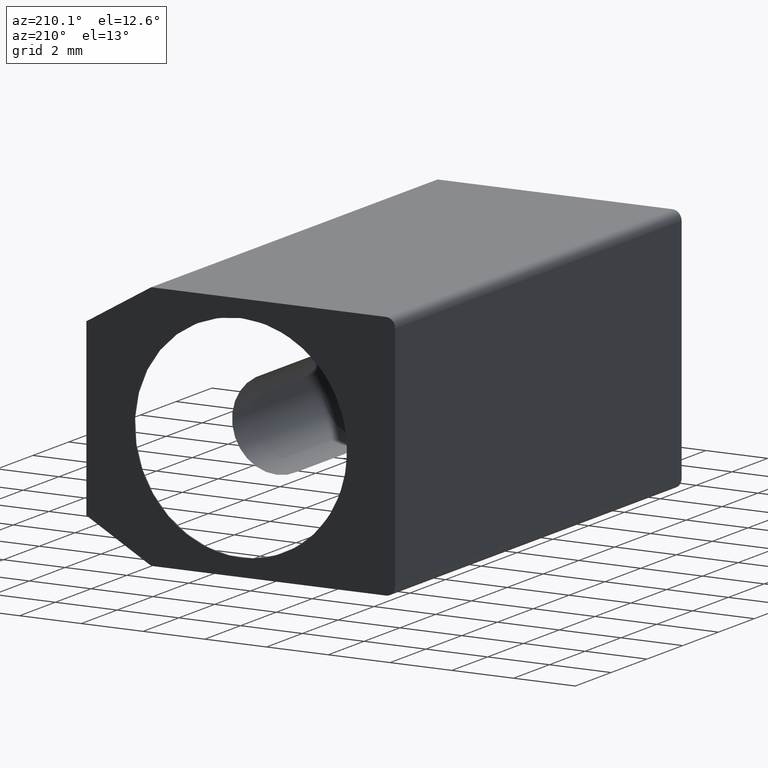
[diagram: clean part render]
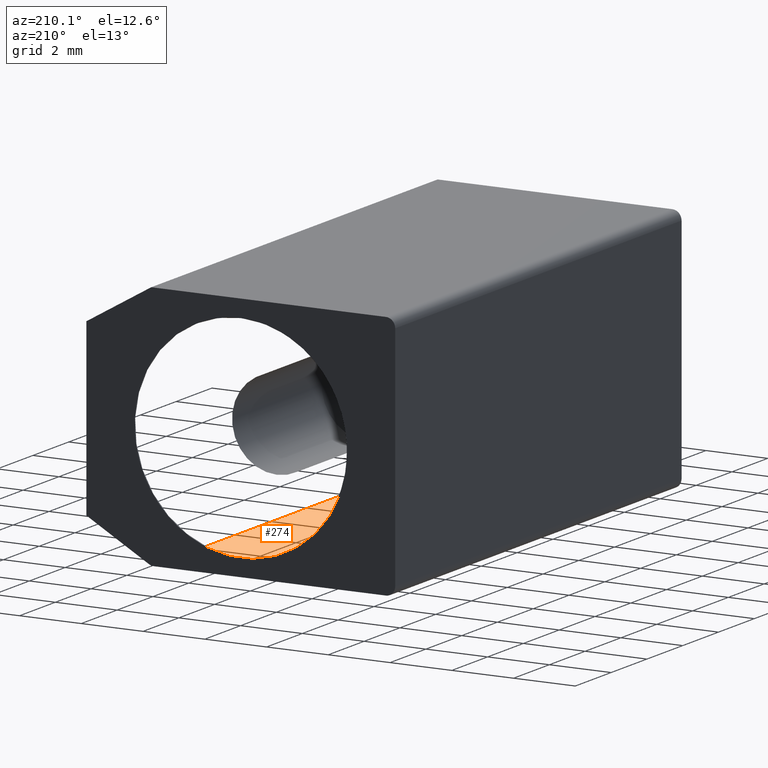
[diagram: same view with one face highlighted and labeled with its STEP entity id]
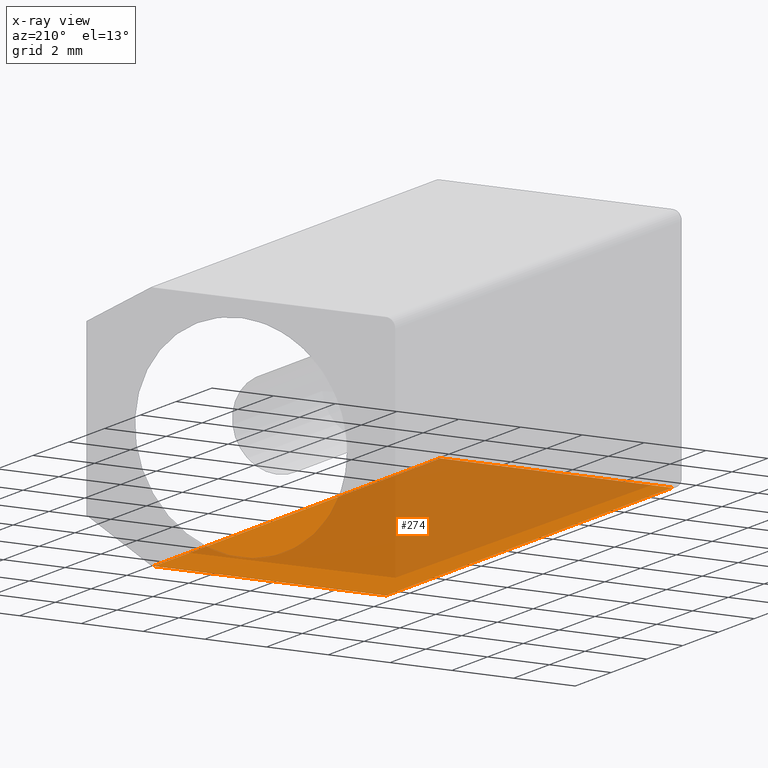
[diagram: x-ray of the same camera — body ghosted, the highlighted face saturated]
A machine part, auxiliary view. The second image highlights one B-rep face of the part: STEP entity #274.
The next image is the same camera in x-ray: the body ghosted, the highlighted face saturated — about 69% of this face is hidden behind the body in this view.
In plain terms, the highlighted planar face has unit normal (-0, -0, -1).
Its self-contained STEP definition (entity closure, byte-faithful):
#49=FACE_OUTER_BOUND('',#66,.T.);
#66=EDGE_LOOP('',(#245,#246,#247,#248));
#76=LINE('',#429,#101);
#85=LINE('',#460,#110);
#89=LINE('',#472,#114);
#93=LINE('',#481,#118);
#101=VECTOR('',#343,9.85221674);
#110=VECTOR('',#376,9.85221674);
#114=VECTOR('',#388,9.85221674);
#118=VECTOR('',#402,9.85221674);
#127=VERTEX_POINT('',#426);
#128=VERTEX_POINT('',#428);
#137=VERTEX_POINT('',#457);
#138=VERTEX_POINT('',#459);
#152=EDGE_CURVE('',#127,#128,#76,.T.);
#167=EDGE_CURVE('',#137,#138,#85,.T.);
#174=EDGE_CURVE('',#128,#137,#89,.T.);
#178=EDGE_CURVE('',#127,#138,#93,.T.);
#245=ORIENTED_EDGE('',*,*,#167,.F.);
#246=ORIENTED_EDGE('',*,*,#174,.F.);
#247=ORIENTED_EDGE('',*,*,#152,.F.);
#248=ORIENTED_EDGE('',*,*,#178,.T.);
#258=PLANE('',#324);
#274=ADVANCED_FACE('',(#49),#258,.T.);
#324=AXIS2_PLACEMENT_3D('',#482,#403,#404);
#343=DIRECTION('',(1.,-1.77635683940025E-15,-3.88578058618804E-16));
#376=DIRECTION('',(-1.,1.77635683940025E-15,3.88578058618804E-16));
#388=DIRECTION('',(1.77635683940025E-15,1.,-3.53883589099268E-16));
#402=DIRECTION('',(1.77635683940025E-15,1.,-3.53883589099268E-16));
#403=DIRECTION('center_axis',(-3.88578058618805E-16,-3.53883589099267E-16,
-1.));
#404=DIRECTION('ref_axis',(-1.,1.77635683940025E-15,3.88578058618804E-16));
#426=CARTESIAN_POINT('',(-14.2802732291175,25.8049562624898,-35.3397922932824));
#428=CARTESIAN_POINT('',(-6.75311275527772,25.8049562624897,-35.3397922932824));
#429=CARTESIAN_POINT('',(-8.77839250113387,25.8049562624897,-35.3397922932824));
#457=CARTESIAN_POINT('',(-6.75311275527769,41.8049562482497,-35.3397922932824));
#459=CARTESIAN_POINT('',(-14.2802732291175,41.8049562482498,-35.3397922932824));
#460=CARTESIAN_POINT('',(-8.77839250113384,41.8049562482497,-35.3397922932824));
#472=CARTESIAN_POINT('',(-6.75311275527772,25.8049562624897,-35.3397922932824));
#481=CARTESIAN_POINT('',(-14.2802732291175,25.8049562624898,-35.3397922932824));
#482=CARTESIAN_POINT('Origin',(-6.75311275527772,25.8049562624897,-35.3397922932824));